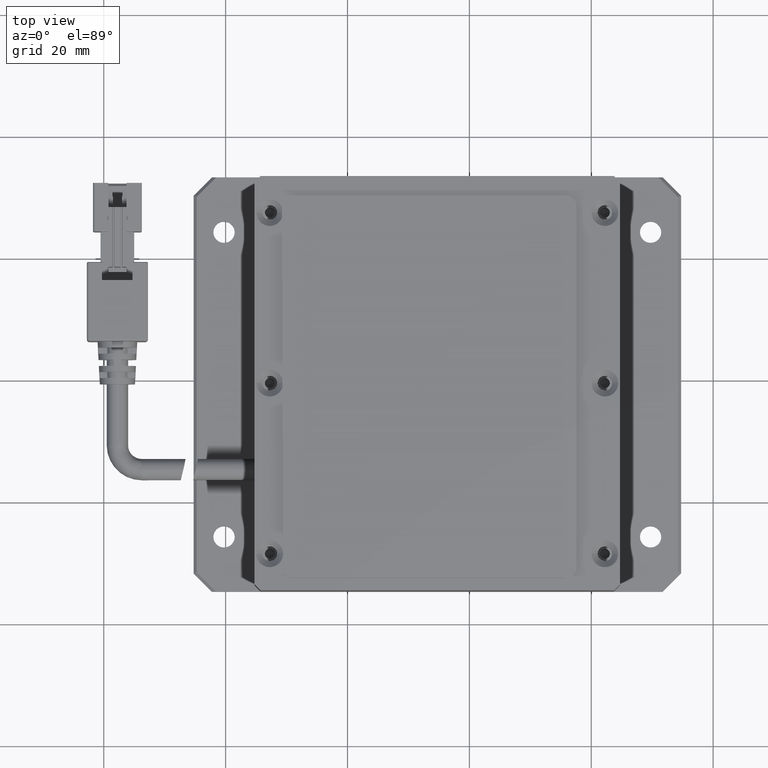
[diagram: clean part render]
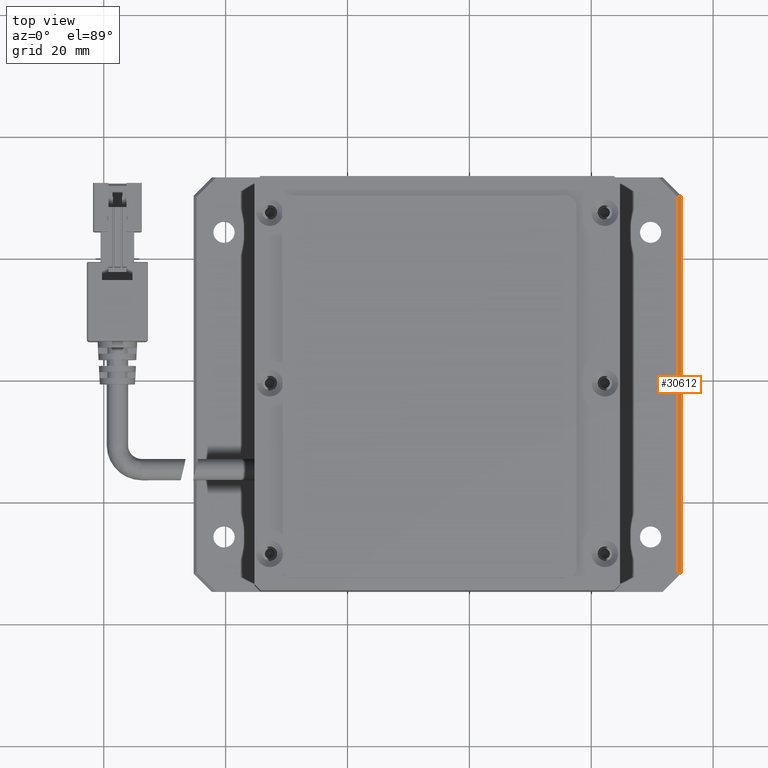
[diagram: same view with one face highlighted and labeled with its STEP entity id]
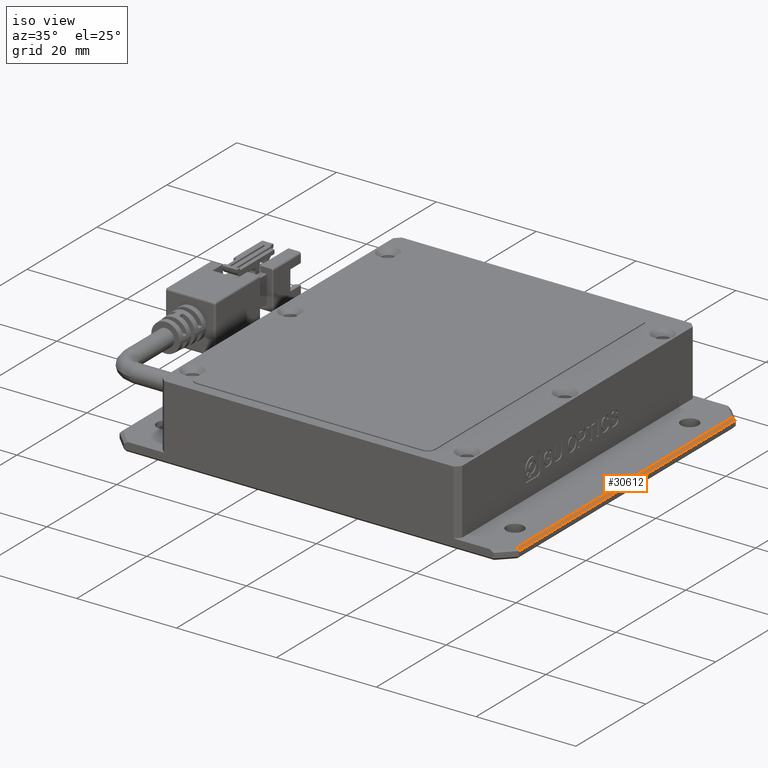
[diagram: same view with one face highlighted and labeled with its STEP entity id]
A machine part, top view. The second image highlights one B-rep face of the part: STEP entity #30612.
A second angle (iso view) of the same face is appended — the face is thin or edge-on in the first view.
In plain terms, the highlighted planar face has unit normal (0.7071, -0, 0.7071).
Its self-contained STEP definition (entity closure, byte-faithful):
#385 = EDGE_LOOP ( 'NONE', ( #15153, #31464, #28013, #34868 ) ) ;
#1445 = VERTEX_POINT ( 'NONE', #37749 ) ;
#1959 = CARTESIAN_POINT ( 'NONE',  ( 34.24226804123707500, 30.14379050785508000, -4.544433405972991800E-012 ) ) ;
#2866 = CARTESIAN_POINT ( 'NONE',  ( 34.74226804123707500, -34.64910271095837400, -0.5000000000045480300 ) ) ;
#4943 = CARTESIAN_POINT ( 'NONE',  ( 34.24226804123706100, -31.44199592977182100, -4.547577592273199800E-012 ) ) ;
#5953 = DIRECTION ( 'NONE',  ( 1.665334536937734800E-016, 1.000000000000000000, 0.0000000000000000000 ) ) ;
#6261 = VERTEX_POINT ( 'NONE', #19203 ) ;
#9818 = PLANE ( 'NONE',  #39083 ) ;
#11601 = VECTOR ( 'NONE', #12351, 1000.000000000000000 ) ;
#12351 = DIRECTION ( 'NONE',  ( 1.665334536937734800E-016, 1.000000000000000000, 0.0000000000000000000 ) ) ;
#12710 = EDGE_CURVE ( 'NONE', #17781, #36833, #17374, .T. ) ;
#15153 = ORIENTED_EDGE ( 'NONE', *, *, #12710, .T. ) ;
#16232 = DIRECTION ( 'NONE',  ( 0.7071067811865376900, -1.177569344012814900E-016, 0.7071067811865574500 ) ) ;
#16297 = EDGE_CURVE ( 'NONE', #36833, #6261, #28482, .T. ) ;
#17374 = LINE ( 'NONE', #4943, #33807 ) ;
#17781 = VERTEX_POINT ( 'NONE', #38350 ) ;
#19203 = CARTESIAN_POINT ( 'NONE',  ( 34.74226804123708900, 30.35089728904164000, -0.5000000000045473600 ) ) ;
#19772 = LINE ( 'NONE', #33810, #11601 ) ;
#20127 = DIRECTION ( 'NONE',  ( 0.6785983445458575500, 0.2810846377148300500, -0.6785983445458324500 ) ) ;
#24828 = EDGE_CURVE ( 'NONE', #17781, #1445, #19772, .T. ) ;
#26430 = DIRECTION ( 'NONE',  ( 0.6785983445458558800, -0.2810846377148231200, -0.6785983445458369000 ) ) ;
#26924 = VECTOR ( 'NONE', #20127, 1000.000000000000100 ) ;
#27696 = FACE_OUTER_BOUND ( 'NONE', #385, .T. ) ;
#27871 = LINE ( 'NONE', #1959, #26924 ) ;
#28013 = ORIENTED_EDGE ( 'NONE', *, *, #33099, .F. ) ;
#28482 = LINE ( 'NONE', #2866, #35734 ) ;
#30612 = ADVANCED_FACE ( 'NONE', ( #27696 ), #9818, .T. ) ;
#31444 = CARTESIAN_POINT ( 'NONE',  ( 34.74226804123707500, -31.64910271095837400, -0.5000000000045464700 ) ) ;
#31464 = ORIENTED_EDGE ( 'NONE', *, *, #16297, .T. ) ;
#33099 = EDGE_CURVE ( 'NONE', #1445, #6261, #27871, .T. ) ;
#33807 = VECTOR ( 'NONE', #26430, 1000.000000000000100 ) ;
#33810 = CARTESIAN_POINT ( 'NONE',  ( 34.24226804123707500, 33.35089728904162600, -4.547577592273199800E-012 ) ) ;
#34746 = CARTESIAN_POINT ( 'NONE',  ( 34.74226804123707500, -34.64910271095837400, -0.5000000000045480300 ) ) ;
#34868 = ORIENTED_EDGE ( 'NONE', *, *, #24828, .F. ) ;
#35734 = VECTOR ( 'NONE', #5953, 1000.000000000000000 ) ;
#36833 = VERTEX_POINT ( 'NONE', #31444 ) ;
#37749 = CARTESIAN_POINT ( 'NONE',  ( 34.24226804123707500, 30.14379050785508000, -4.546551883272693600E-012 ) ) ;
#37840 = DIRECTION ( 'NONE',  ( 0.7071067811865574500, -1.177569344012847700E-016, -0.7071067811865376900 ) ) ;
#38350 = CARTESIAN_POINT ( 'NONE',  ( 34.24226804123706100, -31.44199592977182100, -4.549247765410912100E-012 ) ) ;
#39083 = AXIS2_PLACEMENT_3D ( 'NONE', #34746, #16232, #37840 ) ;